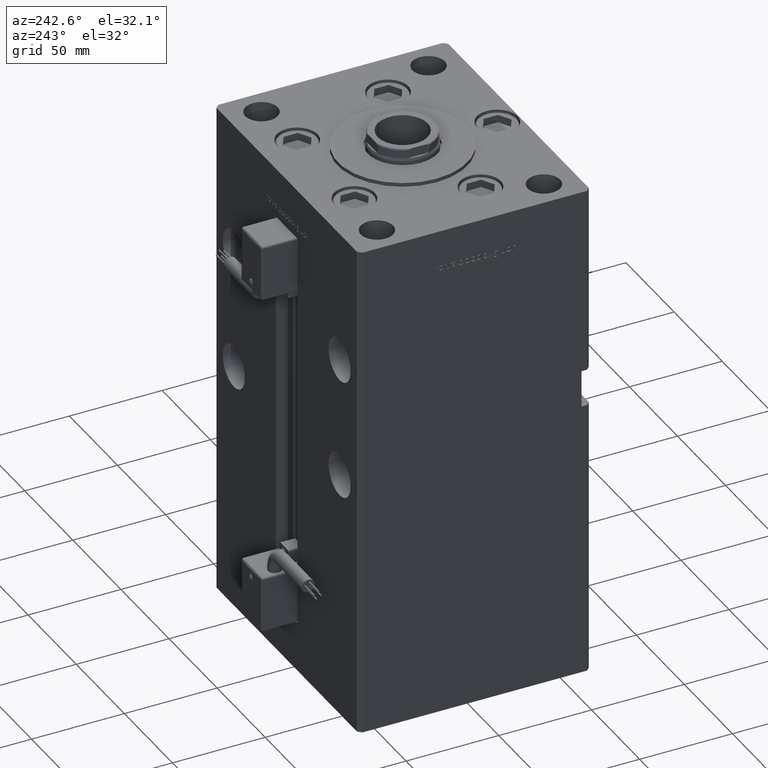
[diagram: clean part render]
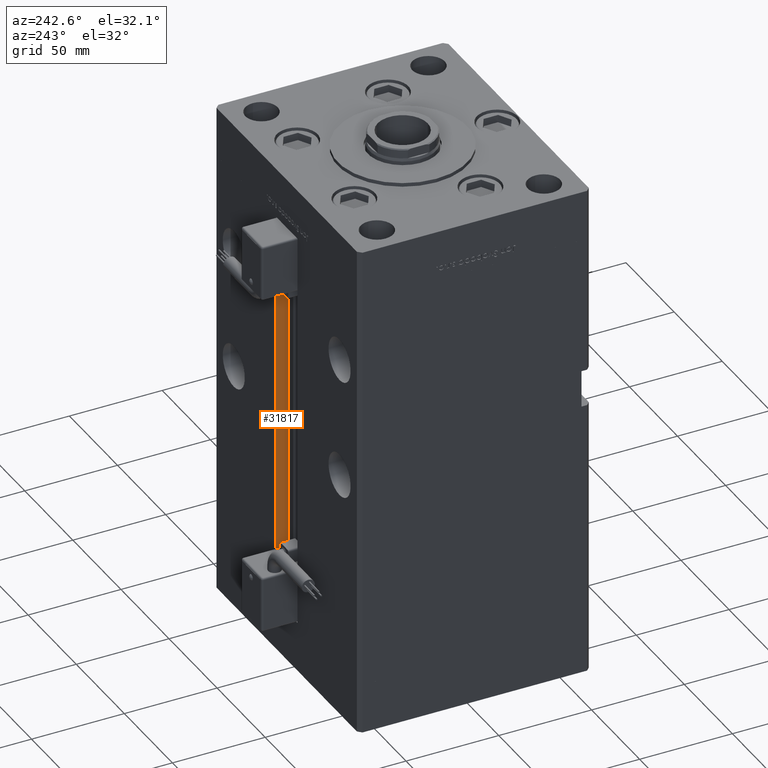
[diagram: same view with one face highlighted and labeled with its STEP entity id]
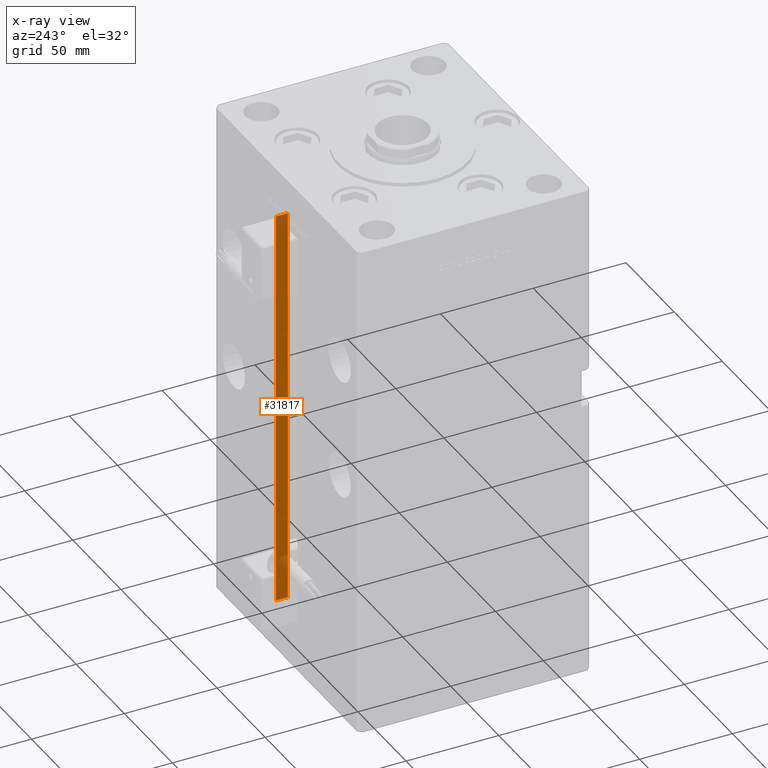
[diagram: x-ray of the same camera — body ghosted, the highlighted face saturated]
A machine part, auxiliary view. The second image highlights one B-rep face of the part: STEP entity #31817.
The next image is the same camera in x-ray: the body ghosted, the highlighted face saturated — about 3% of this face is hidden behind the body in this view.
In plain terms, the highlighted planar face has unit normal (1, 0, 0).
Its self-contained STEP definition (entity closure, byte-faithful):
#486 = VECTOR ( 'NONE', #40751, 1000.000000000000000 ) ;
#887 = DIRECTION ( 'NONE',  ( 1.000000000000000000, -0.000000000000000000, 0.000000000000000000 ) ) ;
#3254 = LINE ( 'NONE', #15938, #486 ) ;
#3451 = VECTOR ( 'NONE', #22214, 1000.000000000000000 ) ;
#4631 = CARTESIAN_POINT ( 'NONE',  ( 11.24999999999999467, 62.50000000000000000, 217.0000000000000000 ) ) ;
#6139 = LINE ( 'NONE', #10344, #3451 ) ;
#7927 = CARTESIAN_POINT ( 'NONE',  ( 11.25000000000000178, 56.00000000000000000, 0.000000000000000000 ) ) ;
#8574 = CARTESIAN_POINT ( 'NONE',  ( 11.25000000000000178, 56.00000000000000000, 217.0000000000000000 ) ) ;
#9108 = VECTOR ( 'NONE', #43519, 1000.000000000000000 ) ;
#10344 = CARTESIAN_POINT ( 'NONE',  ( 11.25000000000000178, 62.50000000000000000, 0.000000000000000000 ) ) ;
#13572 = PLANE ( 'NONE',  #40473 ) ;
#15907 = VERTEX_POINT ( 'NONE', #20160 ) ;
#15938 = CARTESIAN_POINT ( 'NONE',  ( 11.25000000000000178, 56.00000000000000000, 0.000000000000000000 ) ) ;
#16764 = EDGE_CURVE ( 'NONE', #19525, #26529, #3254, .T. ) ;
#18342 = DIRECTION ( 'NONE',  ( 0.000000000000000000, 0.000000000000000000, -1.000000000000000000 ) ) ;
#18483 = EDGE_LOOP ( 'NONE', ( #38538, #27654, #37384, #23110 ) ) ;
#19525 = VERTEX_POINT ( 'NONE', #7927 ) ;
#20160 = CARTESIAN_POINT ( 'NONE',  ( 11.25000000000000178, 62.50000000000000000, 0.000000000000000000 ) ) ;
#20265 = CARTESIAN_POINT ( 'NONE',  ( 11.25000000000000178, 0.000000000000000000, 217.0000000000000000 ) ) ;
#22214 = DIRECTION ( 'NONE',  ( -0.000000000000000000, -0.000000000000000000, 1.000000000000000000 ) ) ;
#23110 = ORIENTED_EDGE ( 'NONE', *, *, #25121, .F. ) ;
#25121 = EDGE_CURVE ( 'NONE', #54270, #26529, #32946, .T. ) ;
#26529 = VERTEX_POINT ( 'NONE', #8574 ) ;
#27654 = ORIENTED_EDGE ( 'NONE', *, *, #35138, .F. ) ;
#31039 = FACE_OUTER_BOUND ( 'NONE', #18483, .T. ) ;
#31817 = ADVANCED_FACE ( 'NONE', ( #31039 ), #13572, .F. ) ;
#32946 = LINE ( 'NONE', #20265, #39382 ) ;
#35138 = EDGE_CURVE ( 'NONE', #19525, #15907, #42976, .T. ) ;
#37384 = ORIENTED_EDGE ( 'NONE', *, *, #16764, .T. ) ;
#38538 = ORIENTED_EDGE ( 'NONE', *, *, #51637, .F. ) ;
#39012 = CARTESIAN_POINT ( 'NONE',  ( 11.25000000000000178, 56.00000000000000000, 0.000000000000000000 ) ) ;
#39382 = VECTOR ( 'NONE', #51282, 1000.000000000000000 ) ;
#40473 = AXIS2_PLACEMENT_3D ( 'NONE', #53318, #887, #18342 ) ;
#40751 = DIRECTION ( 'NONE',  ( -0.000000000000000000, -0.000000000000000000, 1.000000000000000000 ) ) ;
#42976 = LINE ( 'NONE', #39012, #9108 ) ;
#43519 = DIRECTION ( 'NONE',  ( 0.000000000000000000, 1.000000000000000000, 0.000000000000000000 ) ) ;
#51282 = DIRECTION ( 'NONE',  ( -0.000000000000000000, -1.000000000000000000, 0.000000000000000000 ) ) ;
#51637 = EDGE_CURVE ( 'NONE', #15907, #54270, #6139, .T. ) ;
#53318 = CARTESIAN_POINT ( 'NONE',  ( 11.25000000000000178, 56.00000000000000000, 0.000000000000000000 ) ) ;
#54270 = VERTEX_POINT ( 'NONE', #4631 ) ;